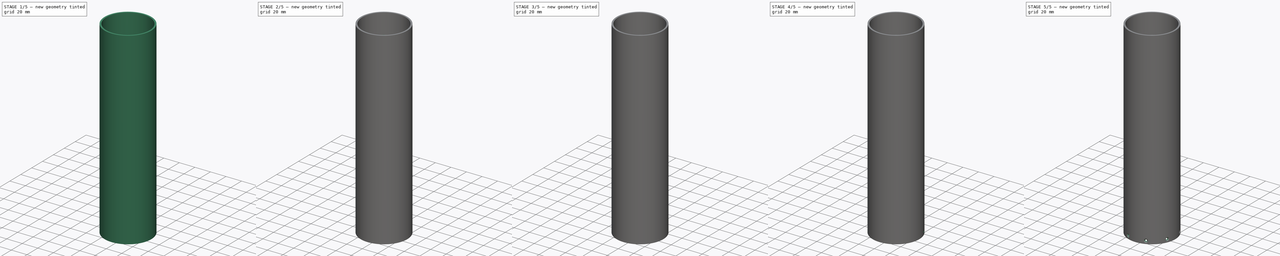
[diagram: build sequence overview — one tinted view per stage of 5, left to right]
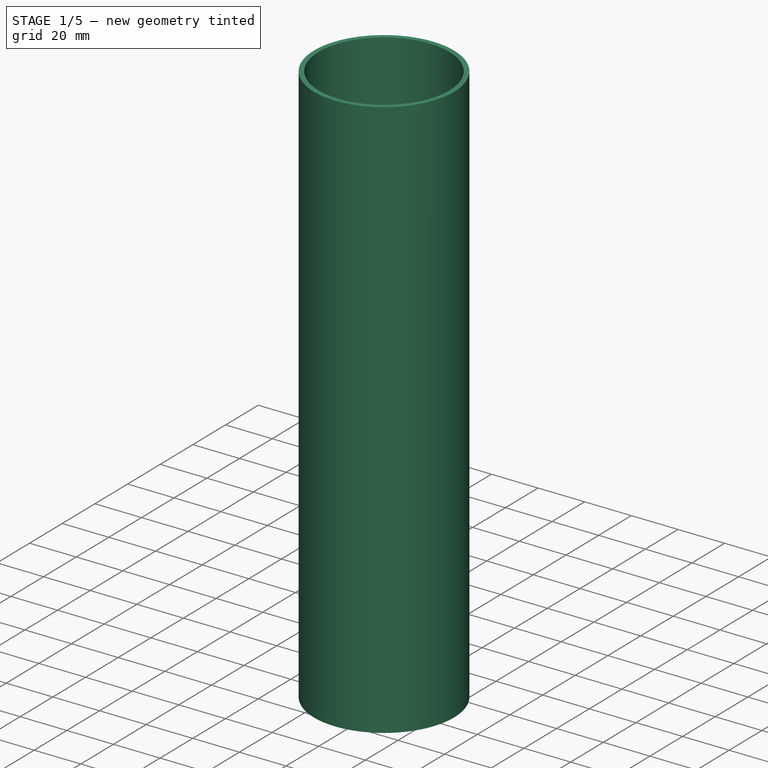
[diagram: stage 1 of 5 — iso view after this stage's code; geometry added in this stage tinted green]
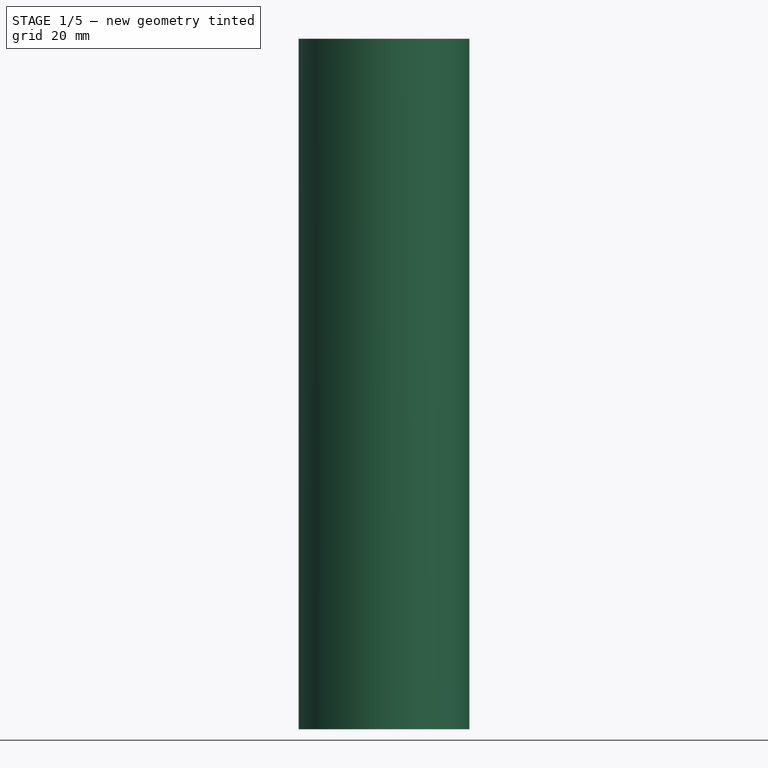
[diagram: stage 1 of 5 — front view after this stage's code; geometry added in this stage tinted green]
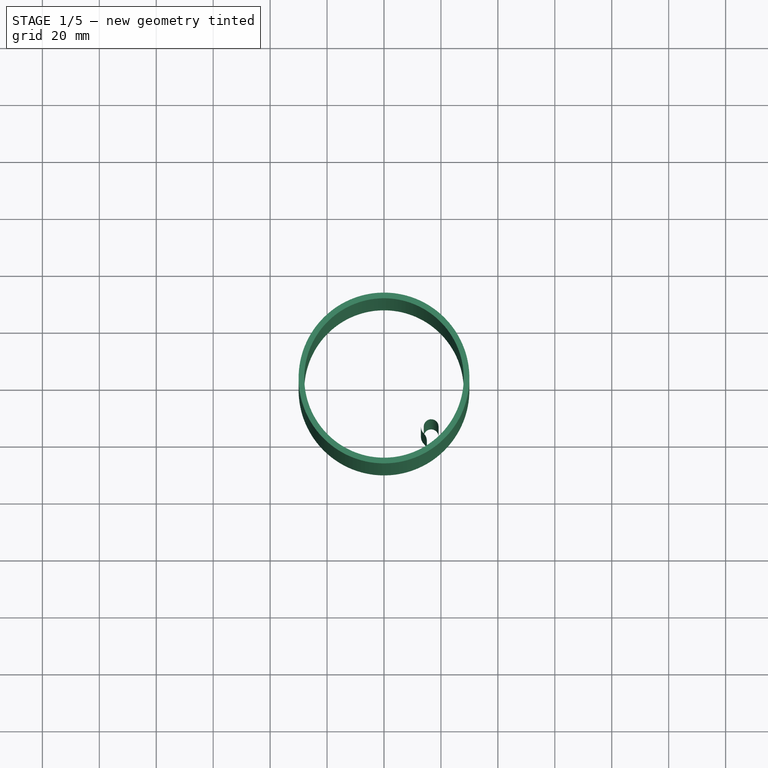
[diagram: stage 1 of 5 — top view after this stage's code; geometry added in this stage tinted green]
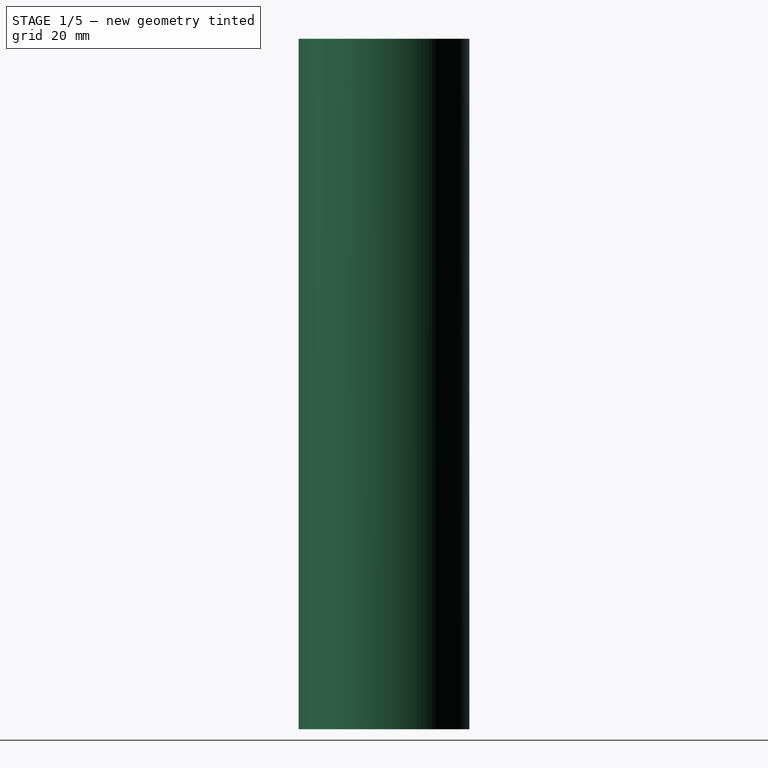
[diagram: stage 1 of 5 — right view after this stage's code; geometry added in this stage tinted green]
FCSTD DOCUMENT  (FreeCAD 1.0R39319 (Git))
Label: parachute_fuselage_seat_v2
License: All rights reserved
objects: Sketcher::SketchObject×12, PartDesign::Pad×7, PartDesign::Pocket×4, PartDesign::Fillet×2, PartDesign::PolarPattern×2, PartDesign::Chamfer×2, PartDesign::Plane×2, PartDesign::Body×1
note: 76 computed .brp shape members not serialized (recipe doc carries the construction recipe); baked Part::Feature solids carry a one-line shape summary decoded from their .brp

FEATURE [Sketcher::SketchObject] Sketch
  ArcFitTolerance = 1e-06
  AttachmentSupport = -> [XY_Plane]
  FullyConstrained = true
  MakeInternals = false
  MapMode = 5
  sketch-geometry (2):
    g0: Circle CenterX=0 CenterY=0 CenterZ=0 NormalX=0 NormalY=0 NormalZ=1 AngleXU=0 Radius=30
    g1: Circle CenterX=0 CenterY=0 CenterZ=0 NormalX=0 NormalY=0 NormalZ=1 AngleXU=0 Radius=28
  constraints (4):
    c: Diameter(g0) = 60
    c: Coincident(g0,g-1)
    c: Diameter(g1) = 56
    c: Coincident(g1,g0)
FEATURE [PartDesign::Pad] Pad  label="fusoliera"
  Direction = (0,0,1)
  Length = 242.5
  Length2 = 10
  Profile = -> Sketch
  ReferenceAxis = -> Sketch [N_Axis]
  Refine = true
  Suppressed = false
  Type = 0
FEATURE [Sketcher::SketchObject] Sketch001
  ArcFitTolerance = 1e-06
  AttachmentOffset = pos=(0,0,-7.5) rot=(0,0,1;0rad)
  AttachmentSupport = -> [Pad]
  ExternalGeometry = -> [Pad]
  FullyConstrained = false
  MakeInternals = false
  MapMode = 5
  Placement = pos=(0,0,7.5) rot=(1,0,0;3.14159rad)
  sketch-geometry (11):
    g0: LineSegment [constr] StartX=0 StartY=0 StartZ=0 EndX=16.566 EndY=16.566 EndZ=0
    g1: Circle CenterX=16.566 CenterY=16.566 CenterZ=0 NormalX=0 NormalY=0 NormalZ=1 AngleXU=0 Radius=2.6
    g2: ArcOfCircle CenterX=16.566 CenterY=16.566 CenterZ=0 NormalX=0 NormalY=0 NormalZ=1 AngleXU=0 Radius=3.6 StartAngle=2.35619 EndAngle=5.49779
    g3: ArcOfCircle CenterX=11.5347 CenterY=21.5974 CenterZ=0 NormalX=0 NormalY=0 NormalZ=1 AngleXU=0 Radius=3.5154 StartAngle=5.49779 EndAngle=7.36344
    g4: ArcOfCircle CenterX=21.5974 CenterY=11.5347 CenterZ=0 NormalX=0 NormalY=0 NormalZ=1 AngleXU=0 Radius=3.5154 StartAngle=0.490536 EndAngle=2.35619
    g5: LineSegment [constr] StartX=12.5561 StartY=7.46494 StartZ=0 EndX=22.1803 EndY=17.0891 EndZ=0
    g6: LineSegment [constr] StartX=7.80773 StartY=12.8989 StartZ=0 EndX=17.0891 EndY=22.1802 EndZ=0
    g7: LineSegment StartX=13.1908 StartY=24.6982 StartZ=0 EndX=13.999 EndY=25.599 EndZ=0
    g8: LineSegment StartX=13.999 StartY=25.599 StartZ=0 EndX=22.2474 EndY=18.8681 EndZ=0
    g9: LineSegment StartX=22.2474 StartY=18.8681 StartZ=0 EndX=25.5121 EndY=14.2018 EndZ=0
    g10: LineSegment StartX=25.5121 StartY=14.2018 StartZ=0 EndX=24.6982 EndY=13.1908 EndZ=0
  constraints (24):
    c: Distance(g0) = 23.4279
    c: Angle(g-1,g0) = 0.785398
    c: Coincident(g0,g-1)
    c: Diameter(g1) = 5.2
    c: Coincident(g1,g0)
    c: Diameter(g2) = 7.2
    c: Coincident(g2,g0)
    c: Tangent(g4,g2)
    c: PointOnObject(g5,g-3)
    c: PointOnObject(g6,g-3)
    c: Parallel(g6,g0)
    c: Parallel(g5,g0)
    c: Tangent(g6,g2)
    c: Tangent(g4,g5) = 1.5708
    c: Tangent(g4,g-3) = -1.5708
    c: Tangent(g2,g5) = -1.5708
    c: Tangent(g2,g3) = 1.5708
    c: Tangent(g3,g-3) = -1.5708
    c: Tangent(g3,g6) = -1.5708
    c: Coincident(g3,g7)
    c: Coincident(g7,g8)
    c: Coincident(g8,g9)
    c: Coincident(g9,g10)
    c: Coincident(g10,g4)
FEATURE [PartDesign::Pad] Pad001  label="sede_tondi"
  BaseFeature = -> Pad
  Direction = (0,0,-1)
  Length = 209
  Length2 = 10
  Profile = -> Sketch001
  ReferenceAxis = -> Sketch001 [N_Axis]
  Refine = true
  Reversed = true
  Suppressed = false
  Type = 0
FEATURE [Sketcher::SketchObject] Sketch002
  ArcFitTolerance = 1e-06
  AttachmentSupport = -> [Pad001]
  ExternalGeometry = -> [Pad001]
  FullyConstrained = true
  MakeInternals = false
  MapMode = 5
  Placement = pos=(0,0,216.5) rot=(0,0,1;0rad)
  sketch-geometry (1):
    g0: Circle CenterX=16.566 CenterY=-16.566 CenterZ=0 NormalX=0 NormalY=0 NormalZ=1 AngleXU=0 Radius=2.6
  constraints (2):
    c: Coincident(g0,g-3)
    c: Equal(g0,g-3)
FEATURE [PartDesign::Pad] Pad002  label="sede_tondi_1"
  BaseFeature = -> Pad001
  Direction = (0,0,1)
  Length = 5
  Length2 = 10
  Profile = -> Sketch002
  ReferenceAxis = -> Sketch002 [N_Axis]
  Refine = true
  Reversed = true
  Suppressed = false
  Type = 0
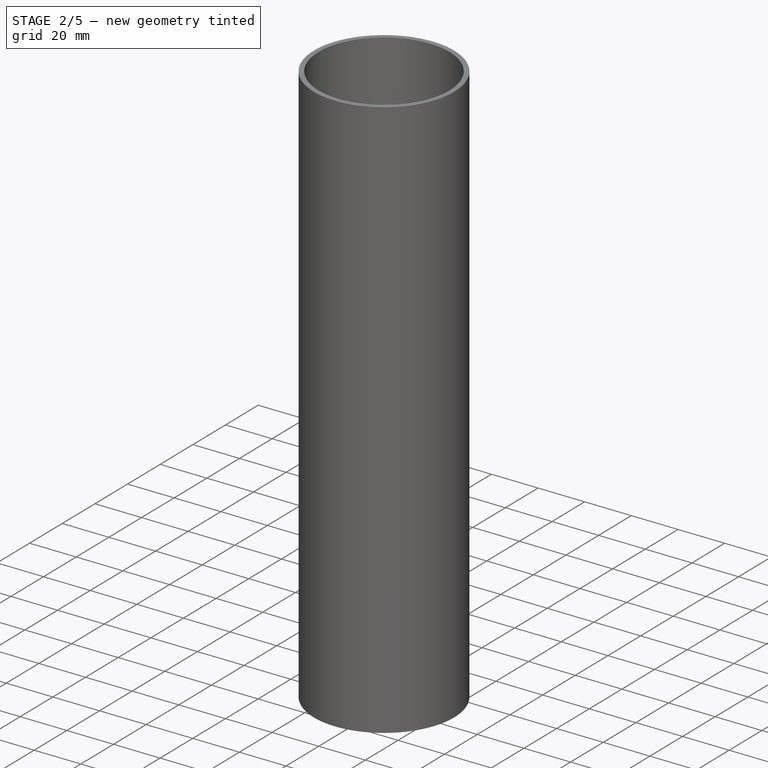
[diagram: stage 2 of 5 — iso view after this stage's code; geometry added in this stage tinted green]
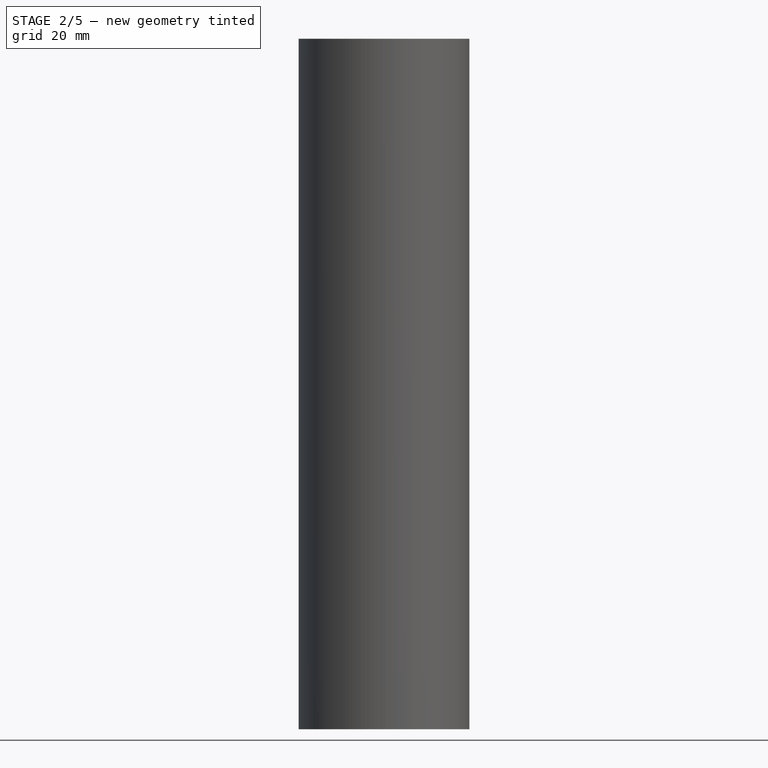
[diagram: stage 2 of 5 — front view after this stage's code; geometry added in this stage tinted green]
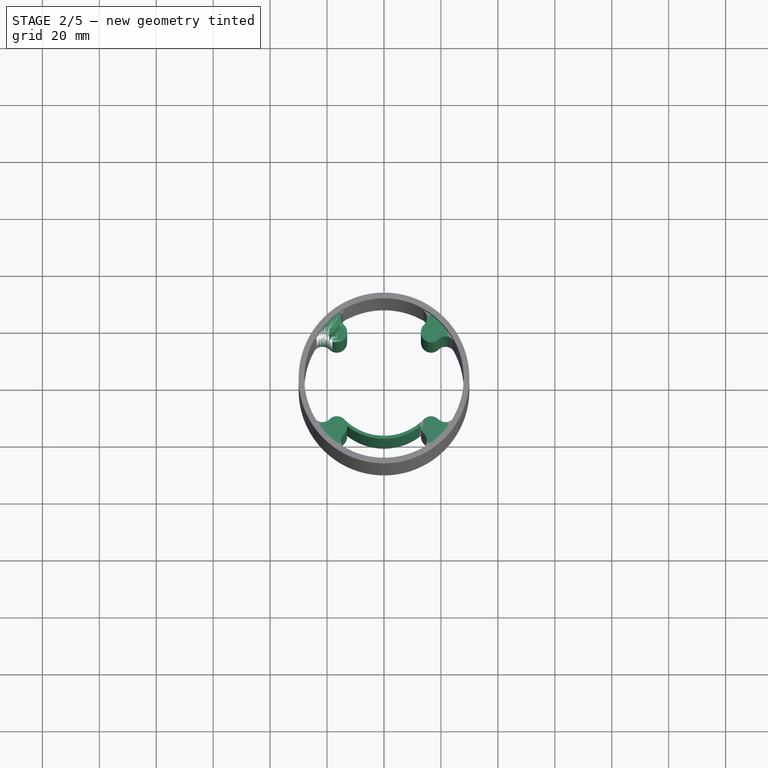
[diagram: stage 2 of 5 — top view after this stage's code; geometry added in this stage tinted green]
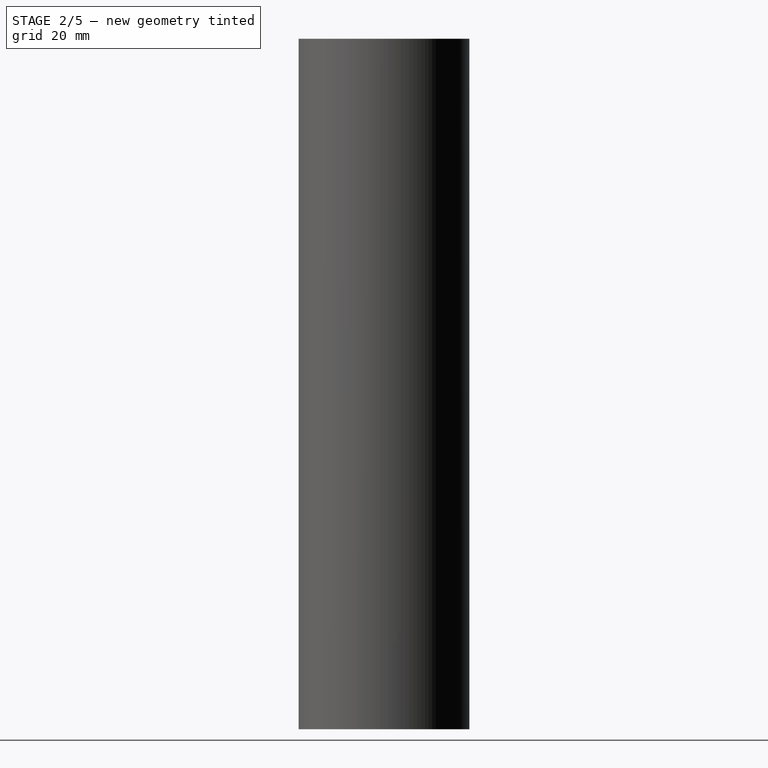
[diagram: stage 2 of 5 — right view after this stage's code; geometry added in this stage tinted green]
FEATURE [Sketcher::SketchObject] Sketch003
  ArcFitTolerance = 1e-06
  AttachmentSupport = -> [Pad002]
  ExternalGeometry = -> [Pad002]
  FullyConstrained = true
  MakeInternals = false
  MapMode = 5
  Placement = pos=(0,0,211.5) rot=(1,0,0;3.14159rad)
  sketch-geometry (1):
    g0: Circle CenterX=16.566 CenterY=16.566 CenterZ=0 NormalX=0 NormalY=0 NormalZ=1 AngleXU=0 Radius=1.45
  constraints (2):
    c: Diameter(g0) = 2.9
    c: Coincident(g0,g-3)
FEATURE [PartDesign::Pad] Pad003  label="sede_tondi_2"
  BaseFeature = -> Pad002
  Direction = (0,0,-1)
  Length = 10
  Length2 = 10
  Profile = -> Sketch003
  ReferenceAxis = -> Sketch003 [N_Axis]
  Refine = true
  Suppressed = false
  Type = 0
FEATURE [PartDesign::Fillet] Fillet
  Base = -> Pad003 [Edge24]
  BaseFeature = -> Pad003
  Radius = 1
  Refine = true
  SupportTransform = false
  Suppressed = false
  UseAllEdges = false
FEATURE [PartDesign::PolarPattern] PolarPattern
  Angle = 360
  Axis = -> Sketch001 [N_Axis]
  BaseFeature = -> Fillet
  Mode = 0
  Occurrences = 4
  Offset = 120
  Originals = -> [Pad001,Pad002,Pad003,Fillet]
  Refine = true
  Suppressed = false
  TransformMode = 0
FEATURE [Sketcher::SketchObject] Sketch004
  ArcFitTolerance = 1e-06
  AttachmentOffset = pos=(0,0,-16.5) rot=(0,0,1;0rad)
  AttachmentSupport = -> [PolarPattern]
  ExternalGeometry = -> [PolarPattern]
  FullyConstrained = false
  MakeInternals = false
  MapMode = 5
  Placement = pos=(0,0,16.5) rot=(1,0,0;3.14159rad)
  sketch-geometry (4):
    g0: ArcOfCircle CenterX=9.5e-15 CenterY=-5.40369e-08 CenterZ=0 NormalX=0 NormalY=0 NormalZ=1 AngleXU=0 Radius=19.8279 StartAngle=0.785398 EndAngle=2.35619
    g1: ArcOfCircle CenterX=9.5e-15 CenterY=-5.40369e-08 CenterZ=0 NormalX=0 NormalY=0 NormalZ=1 AngleXU=0 Radius=20.91 StartAngle=0.901713 EndAngle=2.23988
    g2: LineSegment StartX=12.9698 StartY=16.4016 StartZ=0 EndX=14.0204 EndY=14.0204 EndZ=0
    g3: LineSegment StartX=-14.0204 StartY=14.0204 StartZ=0 EndX=-12.9698 EndY=16.4016 EndZ=0
  constraints (10):
    c: Tangent(g0,g-3) = 1.5708
    c: PointOnObject(g0,g-4)
    c: Diameter(g1) = 41.82
    c: Coincident(g1,g0)
    c: PointOnObject(g1,g-3)
    c: PointOnObject(g1,g-4)
    c: Coincident(g2,g1)
    c: Coincident(g2,g0)
    c: Coincident(g3,g0)
    c: Coincident(g3,g1)
FEATURE [PartDesign::Pad] Pad004  label="sezione_cavi"
  BaseFeature = -> PolarPattern
  Direction = (0,0,-1)
  Length = 200
  Length2 = 10
  Profile = -> Sketch004
  ReferenceAxis = -> Sketch004 [N_Axis]
  Refine = true
  Reversed = true
  Suppressed = false
  Type = 0
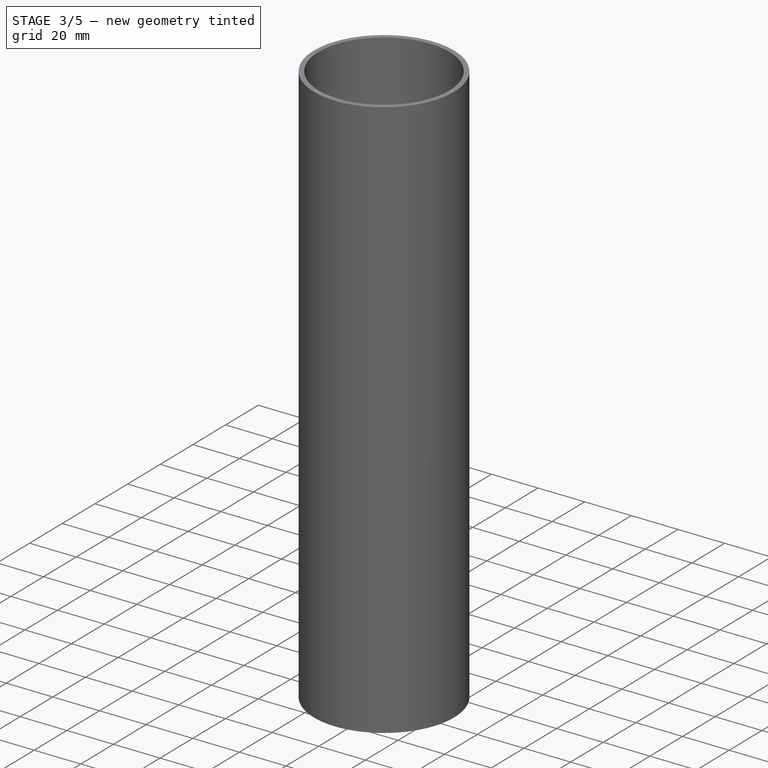
[diagram: stage 3 of 5 — iso view after this stage's code; geometry added in this stage tinted green]
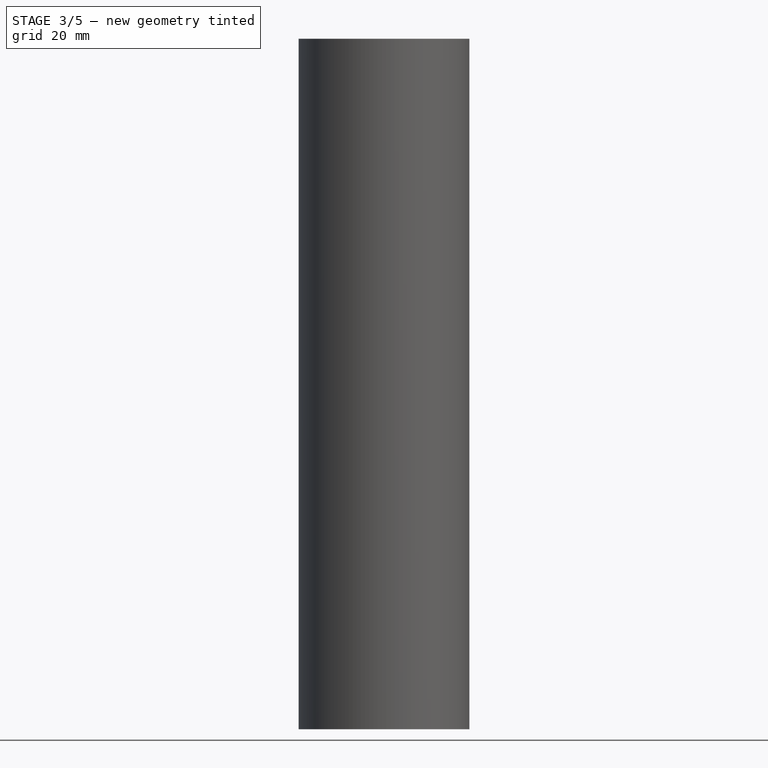
[diagram: stage 3 of 5 — front view after this stage's code; geometry added in this stage tinted green]
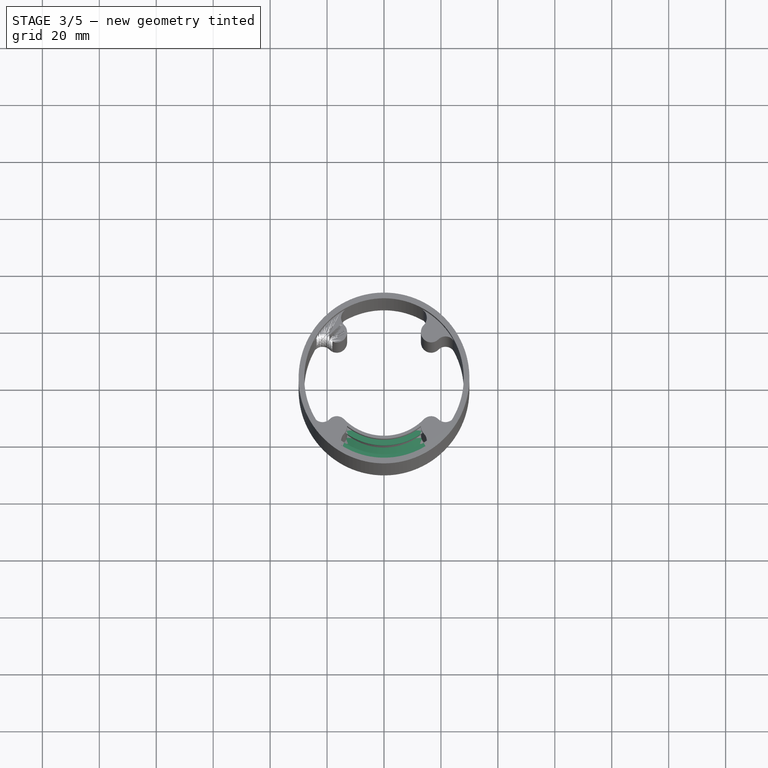
[diagram: stage 3 of 5 — top view after this stage's code; geometry added in this stage tinted green]
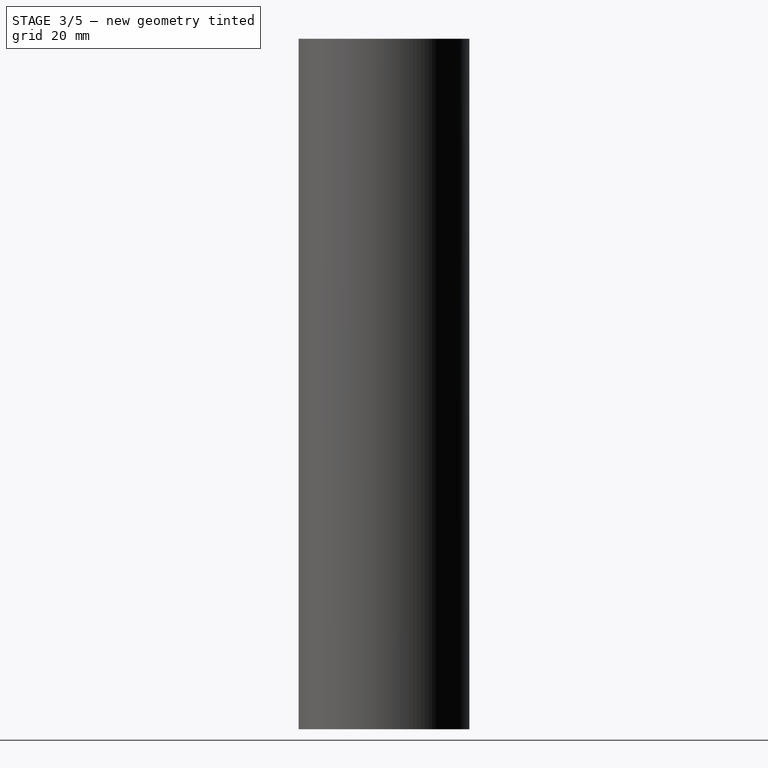
[diagram: stage 3 of 5 — right view after this stage's code; geometry added in this stage tinted green]
FEATURE [Sketcher::SketchObject] Sketch005
  ArcFitTolerance = 1e-06
  AttachmentSupport = -> [Pad004]
  ExternalGeometry = -> [Pad004]
  FullyConstrained = false
  MakeInternals = false
  MapMode = 5
  Placement = pos=(0,0,16.5) rot=(1,0,0;3.14159rad)
  sketch-geometry (6):
    g0: ArcOfCircle CenterX=4.724e-13 CenterY=0 CenterZ=0 NormalX=0 NormalY=0 NormalZ=1 AngleXU=0 Radius=28 StartAngle=0.955225 EndAngle=2.16969
    g1: LineSegment StartX=-12.9698 StartY=16.4016 StartZ=0 EndX=-14.6585 EndY=19.006 EndZ=0
    g2: LineSegment StartX=-14.6585 StartY=19.006 StartZ=0 EndX=-15.7844 EndY=23.1269 EndZ=0
    g3: LineSegment StartX=12.9698 StartY=16.4016 StartZ=0 EndX=14.8749 EndY=19.5468 EndZ=0
    g4: LineSegment StartX=14.8749 StartY=19.5468 StartZ=0 EndX=16.1679 EndY=22.8604 EndZ=0
    g5: ArcOfCircle CenterX=4.724e-13 CenterY=0 CenterZ=0 NormalX=0 NormalY=0 NormalZ=1 AngleXU=0 Radius=20.91 StartAngle=0.901713 EndAngle=2.23988
  constraints (9):
    c: Coincident(g-4,g1)
    c: Coincident(g1,g2)
    c: Coincident(g-4,g3)
    c: Coincident(g3,g4)
    c: Coincident(g0,g2)
    c: Coincident(g0,g4)
    c: Coincident(g5,g0)
    c: Coincident(g5,g1)
    c: Coincident(g5,g3)
FEATURE [PartDesign::Pad] Pad005
  BaseFeature = -> Pad004
  Direction = (0,0,-1)
  Length = 16
  Length2 = 10
  Profile = -> Sketch005
  ReferenceAxis = -> Sketch005 [N_Axis]
  Refine = true
  Reversed = true
  Suppressed = false
  Type = 0
FEATURE [PartDesign::Chamfer] Chamfer
  Angle = 45
  Base = -> Pad005 [Edge83]
  BaseFeature = -> Pad005
  ChamferType = 0
  FlipDirection = false
  Refine = true
  Size = 7
  Size2 = 1
  SupportTransform = false
  Suppressed = false
  UseAllEdges = false
FEATURE [Sketcher::SketchObject] Sketch006
  ArcFitTolerance = 1e-06
  AttachmentOffset = pos=(0,0,-20) rot=(0,0,1;0rad)
  AttachmentSupport = -> [Chamfer]
  ExternalGeometry = -> [Chamfer]
  FullyConstrained = false
  MakeInternals = false
  MapMode = 5
  Placement = pos=(0,0,196.5) rot=(0,0,1;0rad)
  sketch-geometry (10):
    g0: LineSegment [constr] StartX=0 StartY=-20.8808 StartZ=0 EndX=0 EndY=-22.8808 EndZ=0
    g1: LineSegment [constr] StartX=0 StartY=-27.9485 StartZ=0 EndX=0 EndY=-25.9485 EndZ=0
    g2: ArcOfCircle CenterX=-2.06407e-08 CenterY=0.126322 CenterZ=0 NormalX=0 NormalY=0 NormalZ=1 AngleXU=0 Radius=23.0071 StartAngle=4.07328 EndAngle=5.3515
    g3: LineSegment StartX=-12.9698 StartY=-16.4016 StartZ=0 EndX=-13.7232 EndY=-18.3399 EndZ=0
    g4: LineSegment StartX=12.9698 StartY=-16.4016 StartZ=0 EndX=13.7232 EndY=-18.3399 EndZ=0
    g5: ArcOfCircle CenterX=-2.06407e-08 CenterY=0.126322 CenterZ=0 NormalX=0 NormalY=0 NormalZ=1 AngleXU=0 Radius=21.0092 StartAngle=4.04704 EndAngle=5.37774
    g6: ArcOfCircle CenterX=-2.06407e-08 CenterY=0.126322 CenterZ=0 NormalX=0 NormalY=0 NormalZ=1 AngleXU=0 Radius=28.0196 StartAngle=4.10237 EndAngle=5.32777
    g7: ArcOfCircle CenterX=-2.06407e-08 CenterY=0.126322 CenterZ=0 NormalX=0 NormalY=0 NormalZ=1 AngleXU=0 Radius=26.0748 StartAngle=4.09825 EndAngle=5.32652
    g8: LineSegment StartX=-15.0257 StartY=-21.1839 StartZ=0 EndX=-16.052 EndY=-22.8396 EndZ=0
    g9: LineSegment StartX=15.0257 StartY=-21.1839 StartZ=0 EndX=16.1748 EndY=-22.7533 EndZ=0
  constraints (22):
    c: PointOnObject(g0,g-2)
    c: Vertical(g0)
    c: DistanceY(g0,g0) = 2
    c: PointOnObject(g1,g-2)
    c: Vertical(g1)
    c: Distance(g1,g1) = 2
    c: PointOnObject(g0,g2)
    c: Coincident(g3,g-5)
    c: Coincident(g4,g-8)
    c: Coincident(g3,g2)
    c: Coincident(g4,g2)
    c: Coincident(g5,g2)
    c: Coincident(g5,g-3)
    c: Coincident(g5,g3)
    c: Coincident(g6,g2)
    c: PointOnObject(g-6,g6)
    c: Coincident(g7,g2)
    c: PointOnObject(g1,g7)
    c: Coincident(g6,g9)
    c: Coincident(g6,g8)
    c: Coincident(g8,g7)
    c: Coincident(g9,g7)
FEATURE [PartDesign::Pad] Pad006
  BaseFeature = -> Chamfer
  Direction = (0,0,1)
  Length = 5
  Length2 = 10
  Profile = -> Sketch006
  ReferenceAxis = -> Sketch006 [N_Axis]
  Refine = true
  Reversed = true
  Suppressed = false
  Type = 0
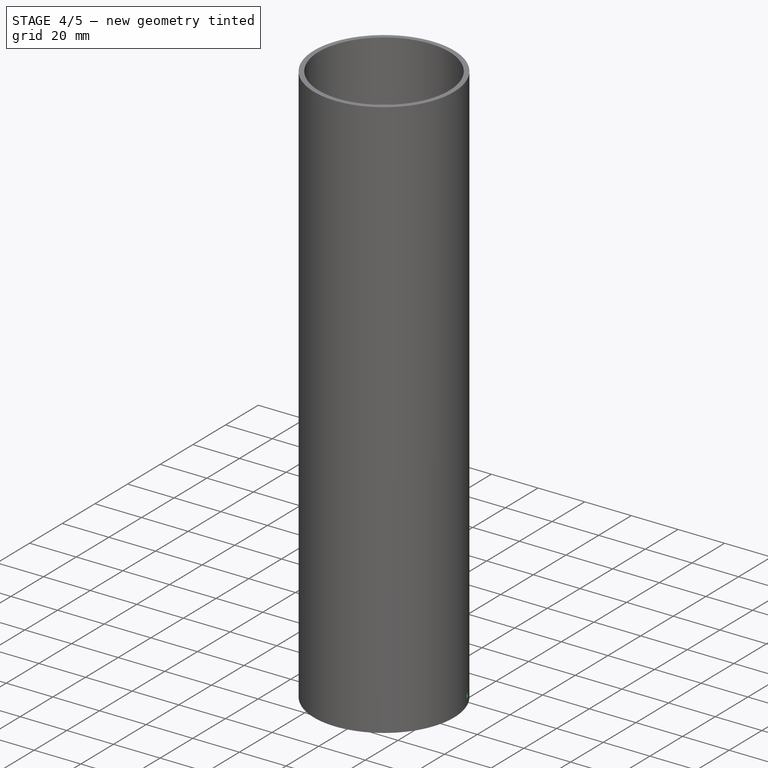
[diagram: stage 4 of 5 — iso view after this stage's code; geometry added in this stage tinted green]
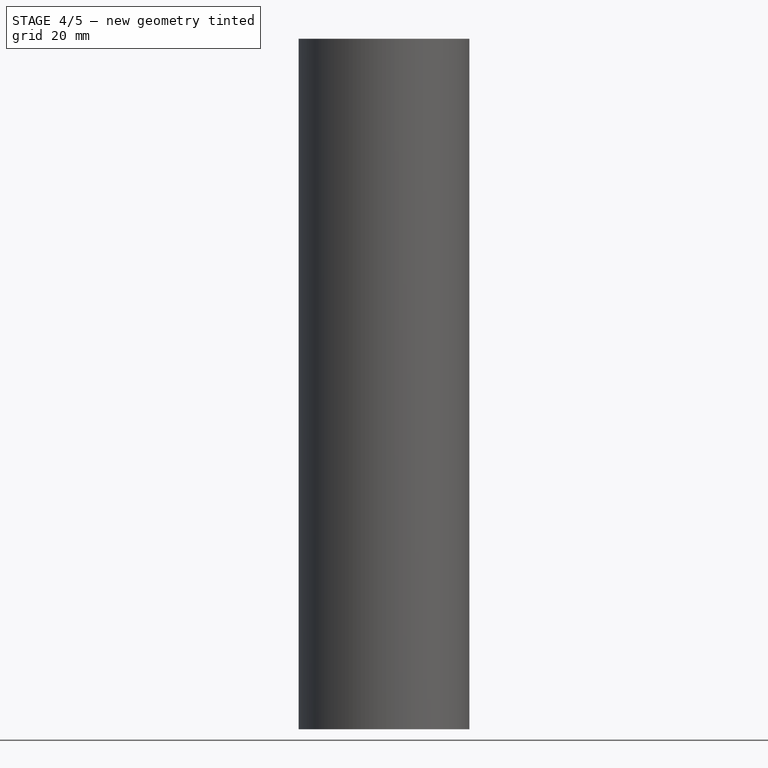
[diagram: stage 4 of 5 — front view after this stage's code; geometry added in this stage tinted green]
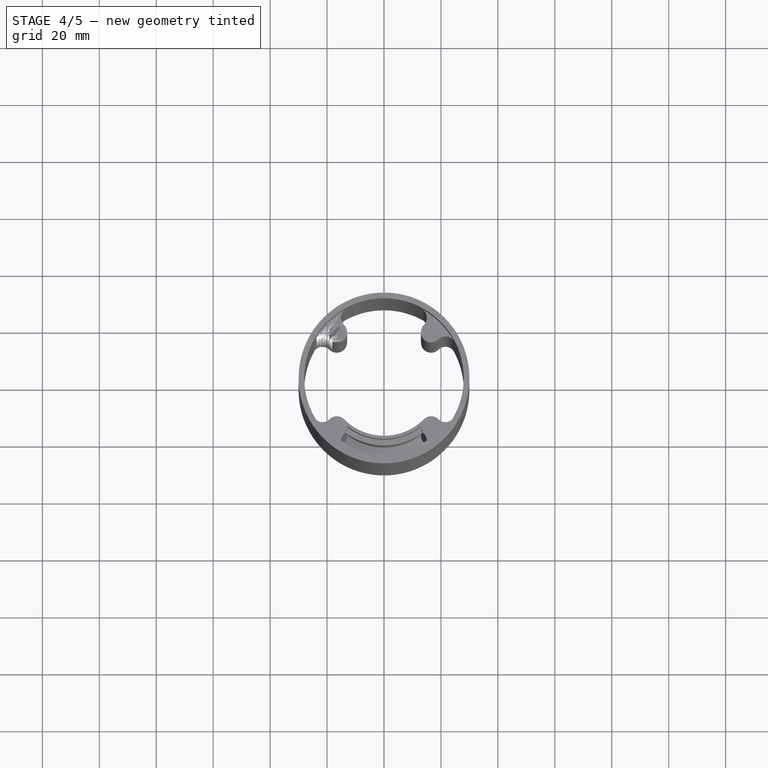
[diagram: stage 4 of 5 — top view after this stage's code; geometry added in this stage tinted green]
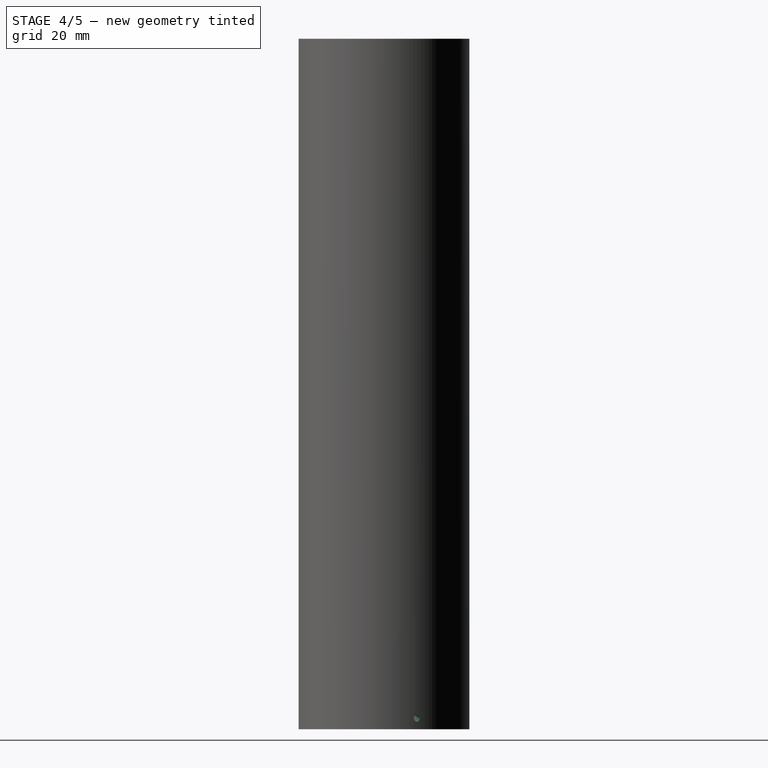
[diagram: stage 4 of 5 — right view after this stage's code; geometry added in this stage tinted green]
FEATURE [Sketcher::SketchObject] Sketch007
  ArcFitTolerance = 1e-06
  AttachmentSupport = -> [Pad006]
  ExternalGeometry = -> [Pad006]
  FullyConstrained = false
  MakeInternals = false
  MapMode = 5
  Placement = pos=(0,3.9e-15,16.5) rot=(1,0,0;3.14159rad)
  sketch-geometry (9):
    g0: Circle [constr] CenterX=0 CenterY=0 CenterZ=0 NormalX=0 NormalY=0 NormalZ=1 AngleXU=0 Radius=20.83
    g1: LineSegment [constr] StartX=-5.16783 StartY=28 StartZ=0 EndX=4.14171 EndY=28 EndZ=0
    g2: LineSegment [constr] StartX=-5.36711 StartY=27.5 StartZ=0 EndX=5.76753 EndY=27.5 EndZ=0
    g3: LineSegment [constr] StartX=-5.85346 StartY=20.83 StartZ=0 EndX=5.76753 EndY=20.83 EndZ=0
    g4: LineSegment StartX=-4.8 StartY=27.24 StartZ=0 EndX=-4.8 EndY=21.09 EndZ=0
    g5: LineSegment StartX=-4.8 StartY=21.09 StartZ=0 EndX=4.8 EndY=21.09 EndZ=0
    g6: LineSegment StartX=4.8 StartY=21.09 StartZ=0 EndX=4.8 EndY=27.24 EndZ=0
    g7: LineSegment StartX=4.8 StartY=27.24 StartZ=0 EndX=-4.8 EndY=27.24 EndZ=0
    g8: LineSegment [constr] StartX=-6.26611 StartY=24.165 StartZ=0 EndX=8.45146 EndY=24.165 EndZ=0
  constraints (21):
    c: Diameter(g0) = 41.66
    c: Coincident(g0,g-1)
    c: Horizontal(g1)
    c: Horizontal(g2)
    c: Tangent(g1,g-3)
    c: DistanceY(g2,g1) = 0.5
    c: Horizontal(g3)
    c: Tangent(g3,g0)
    c: Coincident(g4,g5)
    c: Coincident(g5,g6)
    c: Coincident(g6,g7)
    c: Coincident(g7,g4)
    c: Vertical(g4)
    c: Vertical(g6)
    c: Horizontal(g5)
    c: DistanceY(g4,g4) = 6.15
    c: DistanceX(g4,g5) = 9.6
    c: Symmetric(g6,g5,g8)
    c: Symmetric(g4,g6,g-2)
    c: Symmetric(g2,g3,g8)
    c: Radius(g-3) = 28
FEATURE [PartDesign::Pocket] Pocket  label="sede_presa_elettrica"
  BaseFeature = -> Pad006
  Direction = (0,0,1)
  Length = 12.6
  Length2 = 5
  Profile = -> Sketch007
  ReferenceAxis = -> Sketch007 [N_Axis]
  Refine = true
  Suppressed = false
  Type = 0
FEATURE [PartDesign::Fillet] Fillet001
  Base = -> Pocket [Edge124,Edge125,Edge129,Edge127]
  BaseFeature = -> Pocket
  Radius = 3
  Refine = true
  SupportTransform = false
  Suppressed = false
  UseAllEdges = false
FEATURE [Sketcher::SketchObject] Sketch008
  ArcFitTolerance = 1e-06
  AttachmentSupport = -> [Fillet001]
  ExternalGeometry = -> [Fillet001]
  FullyConstrained = false
  MakeInternals = false
  MapMode = 5
  Placement = pos=(0,0,29.1) rot=(1,0,0;3.14159rad)
  sketch-geometry (3):
    g0: LineSegment [constr] StartX=-2.29505 StartY=24.165 StartZ=0 EndX=2.7306 EndY=24.165 EndZ=0
    g1: Circle CenterX=2.4 CenterY=24.165 CenterZ=0 NormalX=0 NormalY=0 NormalZ=1 AngleXU=0 Radius=1
    g2: Circle CenterX=-2.4 CenterY=24.165 CenterZ=0 NormalX=0 NormalY=0 NormalZ=1 AngleXU=0 Radius=1
  constraints (6):
    c: Symmetric(g-3,g-4,g0)
    c: Diameter(g1) = 2
    c: PointOnObject(g1,g0)
    c: Diameter(g2) = 2
    c: Distance(g2,g-2) = 2.4
    c: Symmetric(g2,g1,g-2)
FEATURE [PartDesign::Pocket] Pocket001
  BaseFeature = -> Fillet001
  Direction = (0,0,1)
  Length = 9
  Length2 = 5
  Profile = -> Sketch008
  ReferenceAxis = -> Sketch008 [N_Axis]
  Refine = true
  Suppressed = false
  Type = 0
FEATURE [Sketcher::SketchObject] Sketch009
  ArcFitTolerance = 1e-06
  AttachmentSupport = -> [Pocket001]
  ExternalGeometry = -> [Pocket001]
  FullyConstrained = true
  MakeInternals = false
  MapMode = 5
  Placement = pos=(0,0,0) rot=(1,0,0;3.14159rad)
  sketch-geometry (3):
    g0: LineSegment StartX=0 StartY=0 StartZ=0 EndX=27.7164 EndY=11.4805 EndZ=0
    g1: LineSegment StartX=0 StartY=0 StartZ=0 EndX=27.7164 EndY=-11.4805 EndZ=0
    g2: LineSegment [constr] StartX=0 StartY=0 StartZ=0 EndX=28 EndY=0 EndZ=0
  constraints (9):
    c: Coincident(g0,g-1)
    c: Coincident(g1,g0)
    c: Coincident(g2,g0)
    c: PointOnObject(g2,g-3)
    c: Horizontal(g2)
    c: Angle(g1,g0) = 0.785398
    c: Angle(g2,g0) = 0.392699
    c: PointOnObject(g1,g-4)
    c: PointOnObject(g0,g-4)
FEATURE [PartDesign::Plane] DatumPlane
  AttachmentSupport = -> [Sketch009]
  Length = 106.877
  MapMode = 7
  Placement = pos=(27.7164,11.4805,0) rot=(0.726831,-0.485653,-0.485653;1.88458rad)
  ResizeMode = 0
  Width = 296.388
FEATURE [PartDesign::Plane] DatumPlane001
  AttachmentSupport = -> [Sketch009]
  Length = 106.877
  MapMode = 7
  Placement = pos=(27.7164,-11.4805,0) rot=(-0.427192,0.639338,0.639338;3.94904rad)
  ResizeMode = 0
  Width = 296.388
FEATURE [Sketcher::SketchObject] Sketch010
  ArcFitTolerance = 1e-06
  AttachmentSupport = -> [DatumPlane]
  ExternalGeometry = -> [Pocket001]
  FullyConstrained = true
  MakeInternals = false
  MapMode = 5
  Placement = pos=(27.7164,11.4805,0) rot=(0.726831,-0.485653,-0.485653;1.88458rad)
  sketch-geometry (1):
    g0: Circle CenterX=0 CenterY=3.75 CenterZ=0 NormalX=0 NormalY=0 NormalZ=1 AngleXU=0 Radius=1.1
  constraints (3):
    c: Diameter(g0) = 2.2
    c: PointOnObject(g0,g-2)
    c: DistanceY(g-1,g0) = 3.75
FEATURE [Sketcher::SketchObject] Sketch011
  ArcFitTolerance = 1e-06
  AttachmentSupport = -> [DatumPlane001]
  FullyConstrained = true
  MakeInternals = false
  MapMode = 5
  Placement = pos=(27.7164,-11.4805,0) rot=(-0.427192,0.639338,0.639338;3.94904rad)
  sketch-geometry (1):
    g0: Circle CenterX=0 CenterY=3.75 CenterZ=0 NormalX=0 NormalY=0 NormalZ=1 AngleXU=0 Radius=1.1
  constraints (3):
    c: Diameter(g0) = 2.2
    c: PointOnObject(g0,g-2)
    c: DistanceY(g-1,g0) = 3.75
FEATURE [PartDesign::Pocket] Pocket002  label="sede_viti_inf_1"
  BaseFeature = -> Pocket001
  Direction = (0.92388,0.382683,0)
  Length = 4
  Length2 = 5
  Profile = -> Sketch010
  ReferenceAxis = -> Sketch010 [N_Axis]
  Refine = true
  Reversed = true
  Suppressed = false
  Type = 0
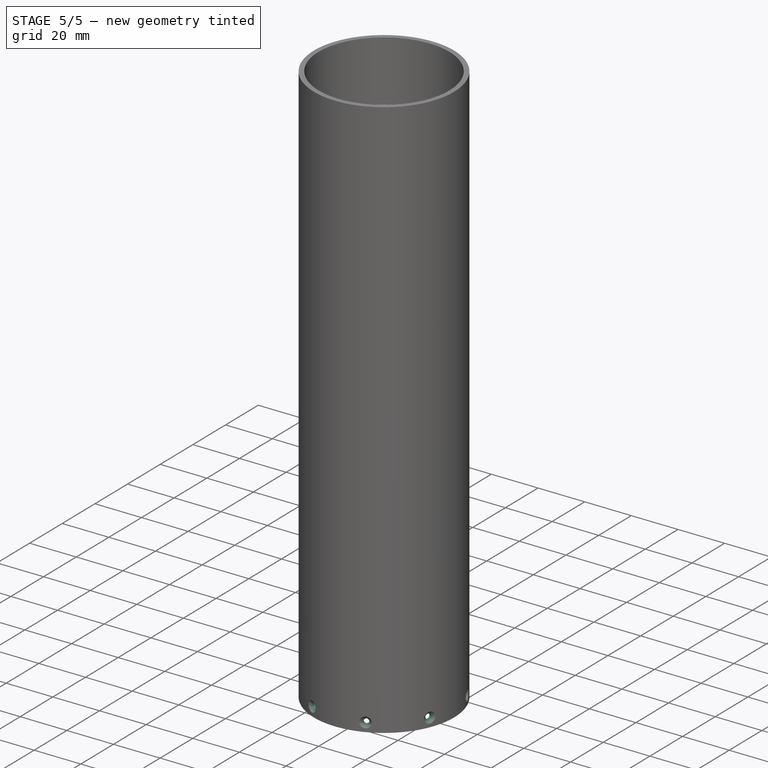
[diagram: stage 5 of 5 — iso view after this stage's code; geometry added in this stage tinted green]
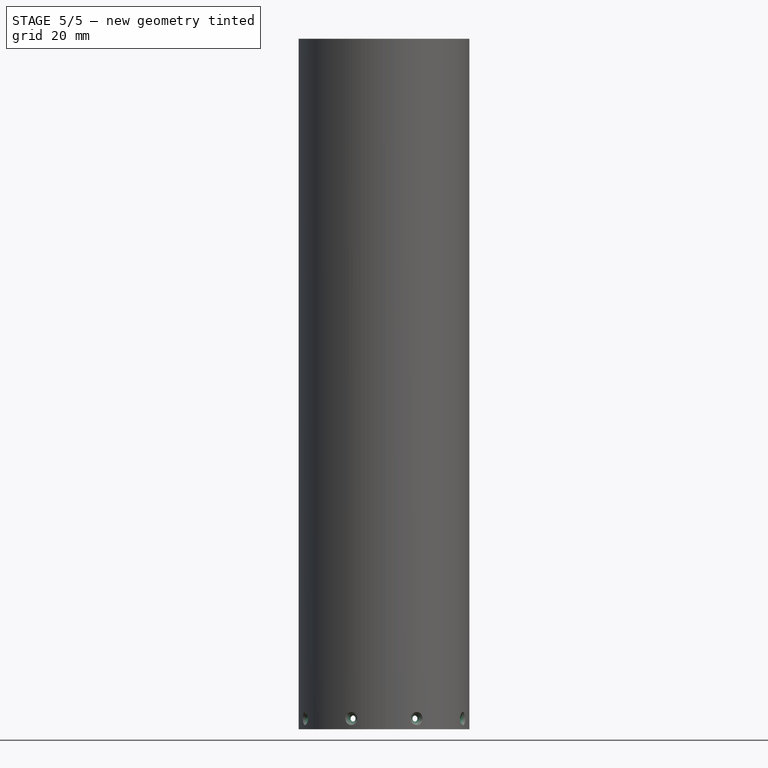
[diagram: stage 5 of 5 — front view after this stage's code; geometry added in this stage tinted green]
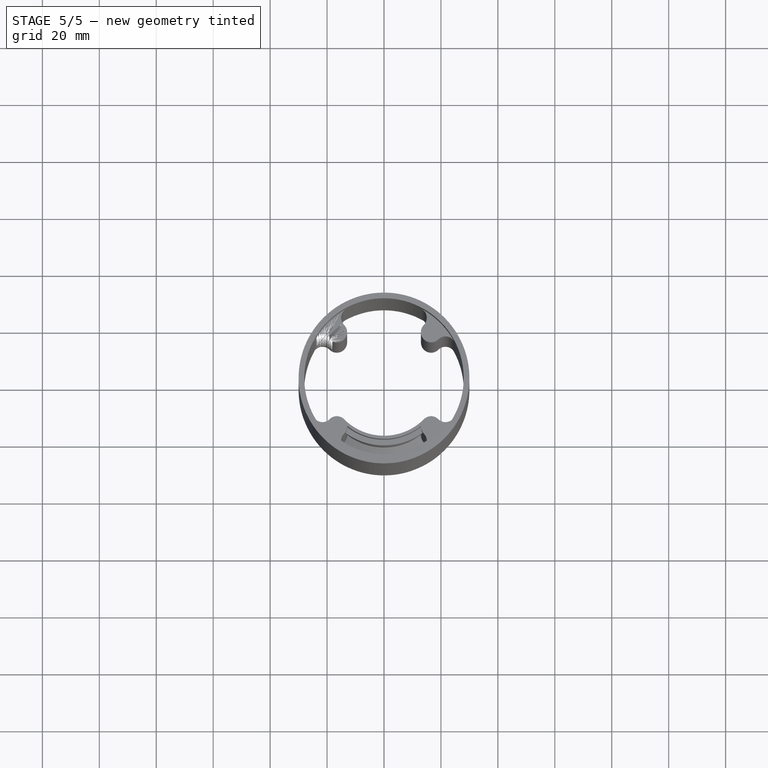
[diagram: stage 5 of 5 — top view after this stage's code; geometry added in this stage tinted green]
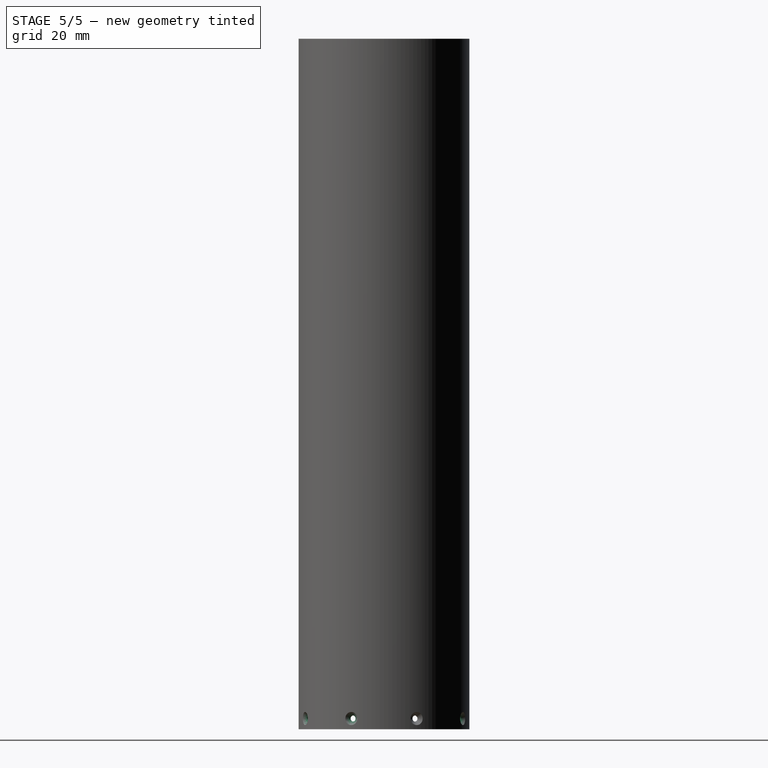
[diagram: stage 5 of 5 — right view after this stage's code; geometry added in this stage tinted green]
FEATURE [PartDesign::Pocket] Pocket003  label="sede_viti_inf_2"
  BaseFeature = -> Pocket002
  Direction = (0.92388,-0.382683,-1e-16)
  Length = 4
  Length2 = 5
  Profile = -> Sketch011
  ReferenceAxis = -> Sketch011 [N_Axis]
  Refine = true
  Reversed = true
  Suppressed = false
  Type = 0
FEATURE [PartDesign::PolarPattern] PolarPattern001
  Angle = 360
  Axis = -> Z_Axis
  BaseFeature = -> Pocket003
  Mode = 0
  Occurrences = 4
  Offset = 120
  Originals = -> [Pocket003,Pocket002]
  Refine = true
  Suppressed = false
  TransformMode = 0
FEATURE [PartDesign::Chamfer] Chamfer001
  Angle = 45
  Base = -> PolarPattern001 [Edge125,Edge124,Edge126,Edge130,Edge129,Edge128,Edge133,Edge134,Edge132,Edge138,Edge137,Edge136,Edge141,Edge142,Edge140,Edge145,Edge146,Edge144,Edge149,Edge150,Edge148,Edge153,Edge154,Edge152]
  BaseFeature = -> PolarPattern001
  ChamferType = 0
  FlipDirection = false
  Refine = true
  Size = 1.2
  Size2 = 1
  SupportTransform = false
  Suppressed = false
  UseAllEdges = false
FEATURE [PartDesign::Body] Body
  AllowCompound = false
  Group = -> [Sketch,Pad,Sketch001,Pad001,Sketch002,Pad002,Sketch003,Pad003,Fillet,PolarPattern,Sketch004,Pad004,Sketch005,Pad005,Chamfer,Sketch006,Pad006,Sketch007,Pocket,Fillet001,Sketch008,Pocket001,Sketch009,DatumPlane,DatumPlane001,Sketch010,Sketch011,Pocket002,Pocket003,PolarPattern001,Chamfer001]
  Origin = -> Origin
  Tip = -> Chamfer001
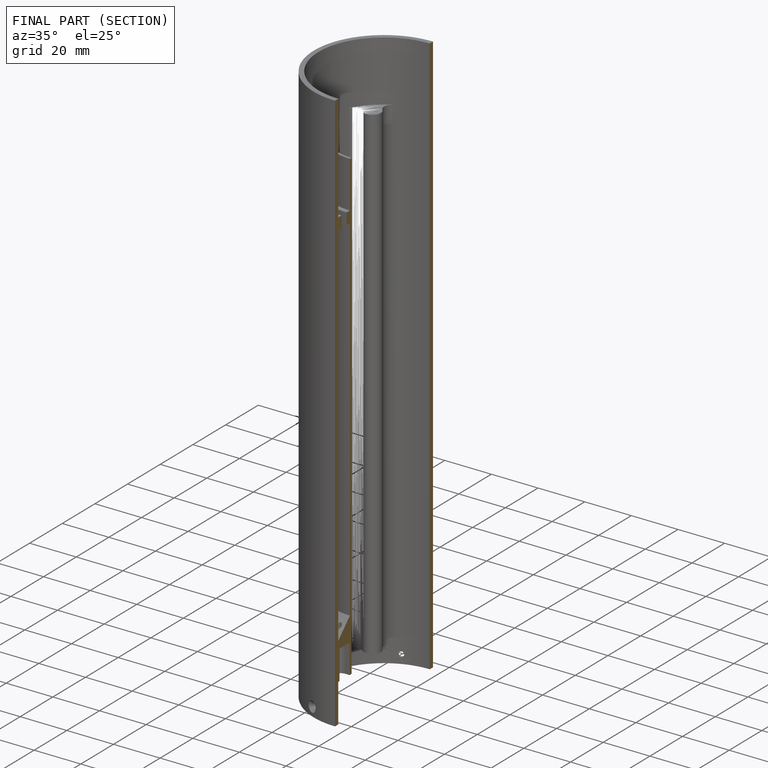
[diagram: finished part — half-section view (interior)]
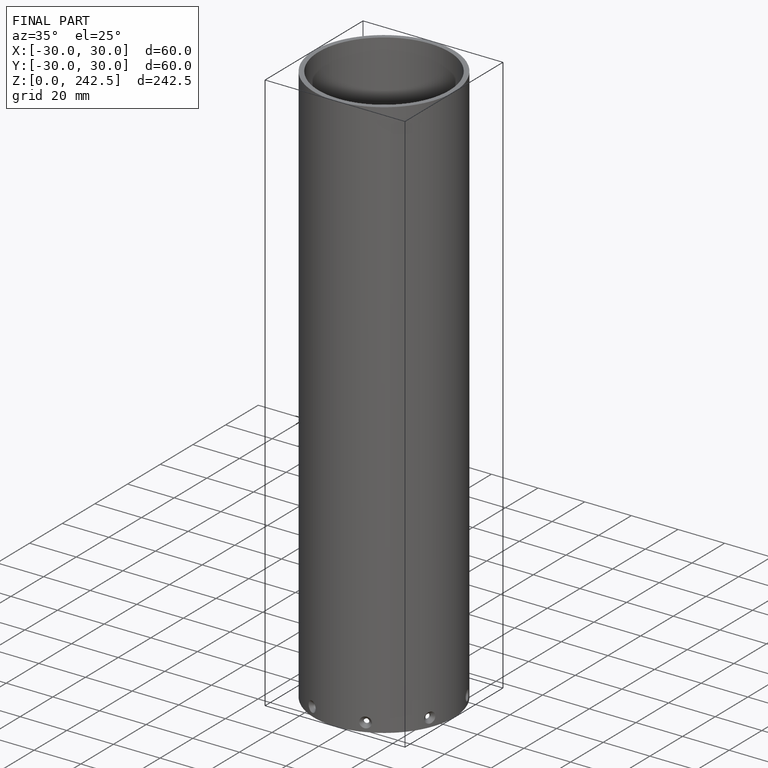
[diagram: finished part — iso view with bounding-box wireframe]
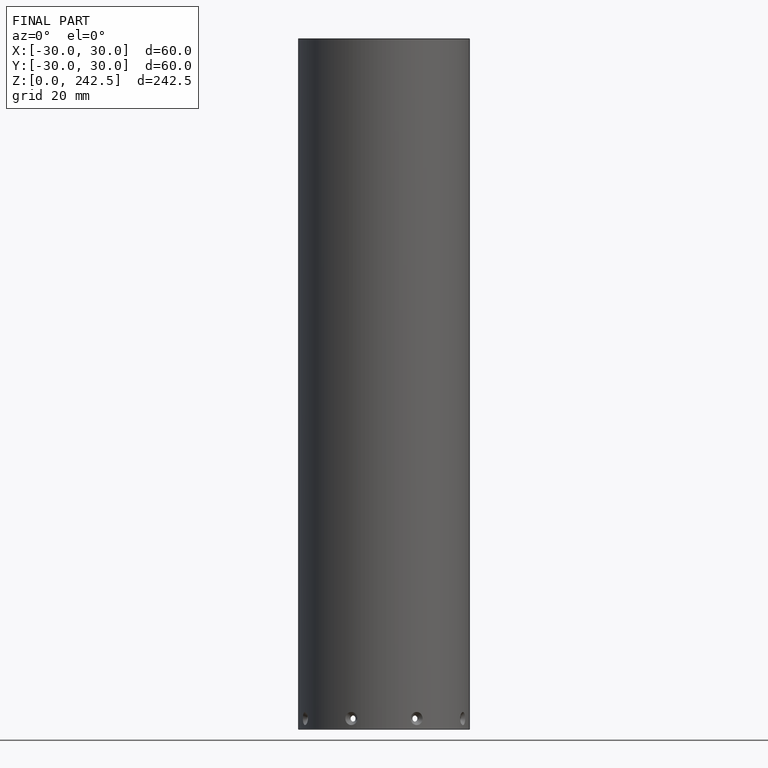
[diagram: finished part — front view with bounding-box wireframe]
